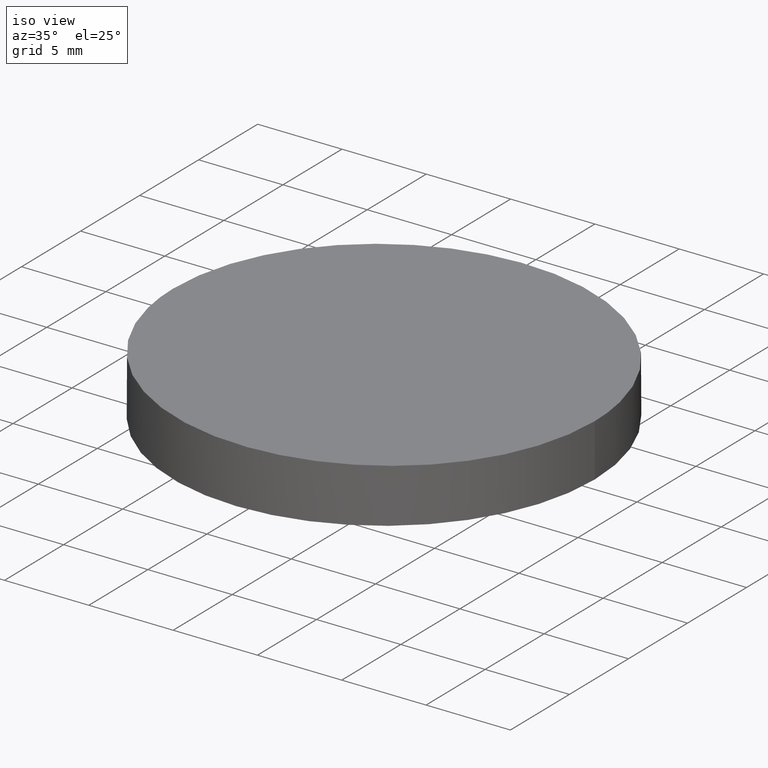
[diagram: clean part render]
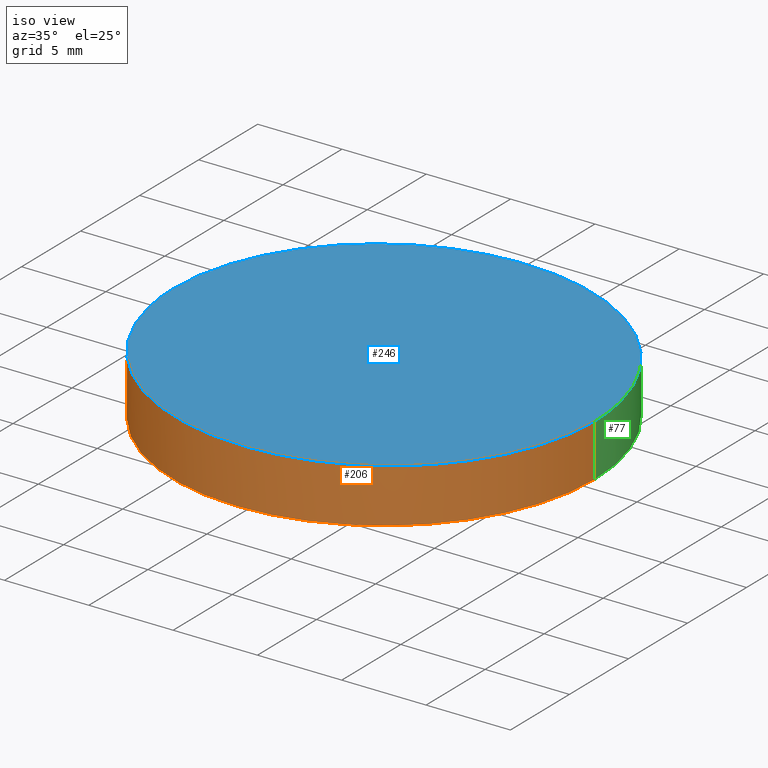
[diagram: same view with three faces highlighted in distinct colors, each labeled with its STEP entity id]
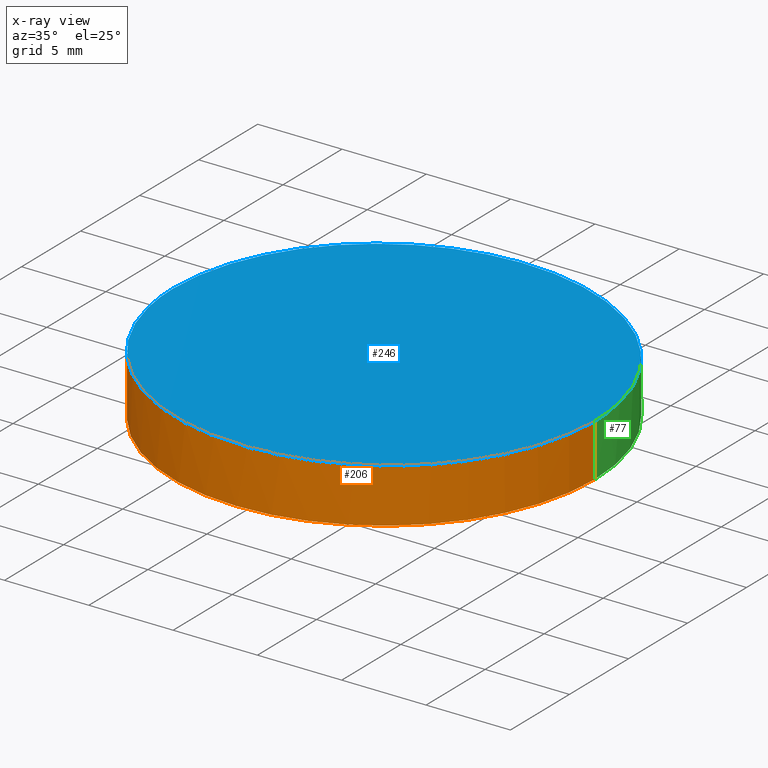
[diagram: x-ray of the same camera — body ghosted, the three highlighted faces saturated]
A machine part, iso view with three faces highlighted in distinct colors.
The next image is the same camera in x-ray (body ghosted, the three faces saturated) — at least one of them is partly hidden behind the body in this view.
Their STEP definitions:

[orange] entity #206 — the highlighted cylindrical surface (partial cylindrical patch) has radius 12.5 mm, axis along (-0, -0, -1).
#1 = EDGE_CURVE ( 'NONE', #100, #24, #235, .T. ) ;
#4 = CARTESIAN_POINT ( 'NONE',  ( -12.49999999999999600, 0.0000000000000000000, 0.0000000000000000000 ) ) ;
#13 = CARTESIAN_POINT ( 'NONE',  ( 0.0000000000000000000, 0.0000000000000000000, 0.0000000000000000000 ) ) ;
#15 = CARTESIAN_POINT ( 'NONE',  ( -12.49999999999999600, 0.0000000000000000000, 10.00000000000000000 ) ) ;
#17 = EDGE_LOOP ( 'NONE', ( #224, #116, #167, #130 ) ) ;
#21 = DIRECTION ( 'NONE',  ( -0.0000000000000000000, -0.0000000000000000000, -1.000000000000000000 ) ) ;
#24 = VERTEX_POINT ( 'NONE', #33 ) ;
#28 = LINE ( 'NONE', #15, #239 ) ;
#33 = CARTESIAN_POINT ( 'NONE',  ( -12.49999999999999600, 0.0000000000000000000, 3.551528623615978200 ) ) ;
#34 = CARTESIAN_POINT ( 'NONE',  ( 12.49999999999999600, 1.530808498934191100E-015, 10.00000000000000000 ) ) ;
#37 = AXIS2_PLACEMENT_3D ( 'NONE', #170, #225, #151 ) ;
#40 = VERTEX_POINT ( 'NONE', #189 ) ;
#55 = DIRECTION ( 'NONE',  ( 0.0000000000000000000, 0.0000000000000000000, 1.000000000000000000 ) ) ;
#82 = CARTESIAN_POINT ( 'NONE',  ( 12.49999999999999600, 1.530808498934191100E-015, 3.128245839569183200 ) ) ;
#83 = CIRCLE ( 'NONE', #191, 12.49999999999999600 ) ;
#100 = VERTEX_POINT ( 'NONE', #209 ) ;
#106 = VECTOR ( 'NONE', #208, 1000.000000000000000 ) ;
#114 = CYLINDRICAL_SURFACE ( 'NONE', #37, 12.49999999999999600 ) ;
#116 = ORIENTED_EDGE ( 'NONE', *, *, #1, .T. ) ;
#130 = ORIENTED_EDGE ( 'NONE', *, *, #139, .T. ) ;
#138 = FACE_OUTER_BOUND ( 'NONE', #17, .T. ) ;
#139 = EDGE_CURVE ( 'NONE', #210, #40, #83, .T. ) ;
#151 = DIRECTION ( 'NONE',  ( -1.000000000000000000, 0.0000000000000000000, 0.0000000000000000000 ) ) ;
#167 = ORIENTED_EDGE ( 'NONE', *, *, #211, .T. ) ;
#169 = CARTESIAN_POINT ( 'NONE',  ( -12.49999999999999500, -24.99999999999998900, 3.551528623615979100 ) ) ;
#170 = CARTESIAN_POINT ( 'NONE',  ( 0.0000000000000000000, 0.0000000000000000000, 10.00000000000000000 ) ) ;
#178 = EDGE_CURVE ( 'NONE', #100, #40, #204, .T. ) ;
#189 = CARTESIAN_POINT ( 'NONE',  ( 12.49999999999999600, 1.530808498934191100E-015, 0.0000000000000000000 ) ) ;
#191 = AXIS2_PLACEMENT_3D ( 'NONE', #13, #55, #248 ) ;
#204 = LINE ( 'NONE', #34, #106 ) ;
#206 = ADVANCED_FACE ( 'NONE', ( #138 ), #114, .T. ) ;
#208 = DIRECTION ( 'NONE',  ( -0.0000000000000000000, -0.0000000000000000000, -1.000000000000000000 ) ) ;
#209 = CARTESIAN_POINT ( 'NONE',  ( 12.49999999999999600, 1.530808498934191100E-015, 3.128245839569183200 ) ) ;
#210 = VERTEX_POINT ( 'NONE', #4 ) ;
#211 = EDGE_CURVE ( 'NONE', #24, #210, #28, .T. ) ;
#224 = ORIENTED_EDGE ( 'NONE', *, *, #178, .F. ) ;
#225 = DIRECTION ( 'NONE',  ( -0.0000000000000000000, -0.0000000000000000000, -1.000000000000000000 ) ) ;
#229 = CARTESIAN_POINT ( 'NONE',  ( -12.49999999999999600, 0.0000000000000000000, 3.551528623615978200 ) ) ;
#235 =( BOUNDED_CURVE ( )  B_SPLINE_CURVE ( 3, ( #82, #249, #169, #229 ),
 .UNSPECIFIED., .F., .T. ) 
 B_SPLINE_CURVE_WITH_KNOTS ( ( 4, 4 ),
 ( 0.0000000000000000000, 3.141592653589793100 ),
 .UNSPECIFIED. ) 
 CURVE ( )  GEOMETRIC_REPRESENTATION_ITEM ( )  RATIONAL_B_SPLINE_CURVE ( ( 1.000000000000000000, 0.3333333333333333700, 0.3333333333333333700, 1.000000000000000000 ) ) 
 REPRESENTATION_ITEM ( '' )  );
#239 = VECTOR ( 'NONE', #21, 1000.000000000000000 ) ;
#248 = DIRECTION ( 'NONE',  ( 1.000000000000000000, 0.0000000000000000000, 0.0000000000000000000 ) ) ;
#249 = CARTESIAN_POINT ( 'NONE',  ( 12.50000000000000000, -24.99999999999998900, 3.128245839569182800 ) ) ;

[blue] entity #246 — the highlighted planar face has unit normal (-0.0169, 0, -0.9999).
#1 = EDGE_CURVE ( 'NONE', #100, #24, #235, .T. ) ;
#23 = PLANE ( 'NONE',  #86 ) ;
#24 = VERTEX_POINT ( 'NONE', #33 ) ;
#33 = CARTESIAN_POINT ( 'NONE',  ( -12.49999999999999600, 0.0000000000000000000, 3.551528623615978200 ) ) ;
#42 = DIRECTION ( 'NONE',  ( -0.01692888503989779800, 0.0000000000000000000, -0.9998566961576573800 ) ) ;
#57 = ORIENTED_EDGE ( 'NONE', *, *, #150, .F. ) ;
#82 = CARTESIAN_POINT ( 'NONE',  ( 12.49999999999999600, 1.530808498934191100E-015, 3.128245839569183200 ) ) ;
#85 = CARTESIAN_POINT ( 'NONE',  ( -12.50000000000000000, 24.99999999999998900, 3.551528623615979100 ) ) ;
#86 = AXIS2_PLACEMENT_3D ( 'NONE', #197, #42, #121 ) ;
#100 = VERTEX_POINT ( 'NONE', #209 ) ;
#117 = CARTESIAN_POINT ( 'NONE',  ( -12.49999999999999600, 0.0000000000000000000, 3.551528623615978200 ) ) ;
#119 =( BOUNDED_CURVE ( )  B_SPLINE_CURVE ( 3, ( #117, #85, #132, #135 ),
 .UNSPECIFIED., .F., .T. ) 
 B_SPLINE_CURVE_WITH_KNOTS ( ( 4, 4 ),
 ( 3.141592653589793100, 6.283185307179586200 ),
 .UNSPECIFIED. ) 
 CURVE ( )  GEOMETRIC_REPRESENTATION_ITEM ( )  RATIONAL_B_SPLINE_CURVE ( ( 1.000000000000000000, 0.3333333333333333700, 0.3333333333333333700, 1.000000000000000000 ) ) 
 REPRESENTATION_ITEM ( '' )  );
#121 = DIRECTION ( 'NONE',  ( -0.9998566961576573800, 0.0000000000000000000, 0.01692888503989779800 ) ) ;
#132 = CARTESIAN_POINT ( 'NONE',  ( 12.50000000000000000, 24.99999999999998900, 3.128245839569182800 ) ) ;
#135 = CARTESIAN_POINT ( 'NONE',  ( 12.49999999999999600, 1.530808498934191100E-015, 3.128245839569183200 ) ) ;
#150 = EDGE_CURVE ( 'NONE', #24, #100, #119, .T. ) ;
#169 = CARTESIAN_POINT ( 'NONE',  ( -12.49999999999999500, -24.99999999999998900, 3.551528623615979100 ) ) ;
#190 = ORIENTED_EDGE ( 'NONE', *, *, #1, .F. ) ;
#197 = CARTESIAN_POINT ( 'NONE',  ( 12.49999999999999600, -25.00000000000000000, 3.128245839569183200 ) ) ;
#200 = FACE_OUTER_BOUND ( 'NONE', #234, .T. ) ;
#209 = CARTESIAN_POINT ( 'NONE',  ( 12.49999999999999600, 1.530808498934191100E-015, 3.128245839569183200 ) ) ;
#229 = CARTESIAN_POINT ( 'NONE',  ( -12.49999999999999600, 0.0000000000000000000, 3.551528623615978200 ) ) ;
#234 = EDGE_LOOP ( 'NONE', ( #57, #190 ) ) ;
#235 =( BOUNDED_CURVE ( )  B_SPLINE_CURVE ( 3, ( #82, #249, #169, #229 ),
 .UNSPECIFIED., .F., .T. ) 
 B_SPLINE_CURVE_WITH_KNOTS ( ( 4, 4 ),
 ( 0.0000000000000000000, 3.141592653589793100 ),
 .UNSPECIFIED. ) 
 CURVE ( )  GEOMETRIC_REPRESENTATION_ITEM ( )  RATIONAL_B_SPLINE_CURVE ( ( 1.000000000000000000, 0.3333333333333333700, 0.3333333333333333700, 1.000000000000000000 ) ) 
 REPRESENTATION_ITEM ( '' )  );
#246 = ADVANCED_FACE ( 'NONE', ( #200 ), #23, .F. ) ;
#249 = CARTESIAN_POINT ( 'NONE',  ( 12.50000000000000000, -24.99999999999998900, 3.128245839569182800 ) ) ;

[green] entity #77 — the highlighted cylindrical surface (partial cylindrical patch) has radius 12.5 mm, axis along (-0, -0, -1).
#4 = CARTESIAN_POINT ( 'NONE',  ( -12.49999999999999600, 0.0000000000000000000, 0.0000000000000000000 ) ) ;
#7 = ORIENTED_EDGE ( 'NONE', *, *, #211, .F. ) ;
#15 = CARTESIAN_POINT ( 'NONE',  ( -12.49999999999999600, 0.0000000000000000000, 10.00000000000000000 ) ) ;
#21 = DIRECTION ( 'NONE',  ( -0.0000000000000000000, -0.0000000000000000000, -1.000000000000000000 ) ) ;
#24 = VERTEX_POINT ( 'NONE', #33 ) ;
#28 = LINE ( 'NONE', #15, #239 ) ;
#33 = CARTESIAN_POINT ( 'NONE',  ( -12.49999999999999600, 0.0000000000000000000, 3.551528623615978200 ) ) ;
#34 = CARTESIAN_POINT ( 'NONE',  ( 12.49999999999999600, 1.530808498934191100E-015, 10.00000000000000000 ) ) ;
#40 = VERTEX_POINT ( 'NONE', #189 ) ;
#54 = CARTESIAN_POINT ( 'NONE',  ( 0.0000000000000000000, 0.0000000000000000000, 10.00000000000000000 ) ) ;
#69 = CIRCLE ( 'NONE', #98, 12.49999999999999600 ) ;
#71 = ORIENTED_EDGE ( 'NONE', *, *, #230, .T. ) ;
#74 = ORIENTED_EDGE ( 'NONE', *, *, #150, .T. ) ;
#75 = DIRECTION ( 'NONE',  ( -1.000000000000000000, 0.0000000000000000000, 0.0000000000000000000 ) ) ;
#77 = ADVANCED_FACE ( 'NONE', ( #213 ), #95, .T. ) ;
#79 = DIRECTION ( 'NONE',  ( -0.0000000000000000000, -0.0000000000000000000, -1.000000000000000000 ) ) ;
#85 = CARTESIAN_POINT ( 'NONE',  ( -12.50000000000000000, 24.99999999999998900, 3.551528623615979100 ) ) ;
#95 = CYLINDRICAL_SURFACE ( 'NONE', #122, 12.49999999999999600 ) ;
#98 = AXIS2_PLACEMENT_3D ( 'NONE', #233, #124, #158 ) ;
#100 = VERTEX_POINT ( 'NONE', #209 ) ;
#106 = VECTOR ( 'NONE', #208, 1000.000000000000000 ) ;
#107 = EDGE_LOOP ( 'NONE', ( #74, #125, #71, #7 ) ) ;
#117 = CARTESIAN_POINT ( 'NONE',  ( -12.49999999999999600, 0.0000000000000000000, 3.551528623615978200 ) ) ;
#119 =( BOUNDED_CURVE ( )  B_SPLINE_CURVE ( 3, ( #117, #85, #132, #135 ),
 .UNSPECIFIED., .F., .T. ) 
 B_SPLINE_CURVE_WITH_KNOTS ( ( 4, 4 ),
 ( 3.141592653589793100, 6.283185307179586200 ),
 .UNSPECIFIED. ) 
 CURVE ( )  GEOMETRIC_REPRESENTATION_ITEM ( )  RATIONAL_B_SPLINE_CURVE ( ( 1.000000000000000000, 0.3333333333333333700, 0.3333333333333333700, 1.000000000000000000 ) ) 
 REPRESENTATION_ITEM ( '' )  );
#122 = AXIS2_PLACEMENT_3D ( 'NONE', #54, #79, #75 ) ;
#124 = DIRECTION ( 'NONE',  ( 0.0000000000000000000, 0.0000000000000000000, 1.000000000000000000 ) ) ;
#125 = ORIENTED_EDGE ( 'NONE', *, *, #178, .T. ) ;
#132 = CARTESIAN_POINT ( 'NONE',  ( 12.50000000000000000, 24.99999999999998900, 3.128245839569182800 ) ) ;
#135 = CARTESIAN_POINT ( 'NONE',  ( 12.49999999999999600, 1.530808498934191100E-015, 3.128245839569183200 ) ) ;
#150 = EDGE_CURVE ( 'NONE', #24, #100, #119, .T. ) ;
#158 = DIRECTION ( 'NONE',  ( 1.000000000000000000, 0.0000000000000000000, 0.0000000000000000000 ) ) ;
#178 = EDGE_CURVE ( 'NONE', #100, #40, #204, .T. ) ;
#189 = CARTESIAN_POINT ( 'NONE',  ( 12.49999999999999600, 1.530808498934191100E-015, 0.0000000000000000000 ) ) ;
#204 = LINE ( 'NONE', #34, #106 ) ;
#208 = DIRECTION ( 'NONE',  ( -0.0000000000000000000, -0.0000000000000000000, -1.000000000000000000 ) ) ;
#209 = CARTESIAN_POINT ( 'NONE',  ( 12.49999999999999600, 1.530808498934191100E-015, 3.128245839569183200 ) ) ;
#210 = VERTEX_POINT ( 'NONE', #4 ) ;
#211 = EDGE_CURVE ( 'NONE', #24, #210, #28, .T. ) ;
#213 = FACE_OUTER_BOUND ( 'NONE', #107, .T. ) ;
#230 = EDGE_CURVE ( 'NONE', #40, #210, #69, .T. ) ;
#233 = CARTESIAN_POINT ( 'NONE',  ( 0.0000000000000000000, 0.0000000000000000000, 0.0000000000000000000 ) ) ;
#239 = VECTOR ( 'NONE', #21, 1000.000000000000000 ) ;